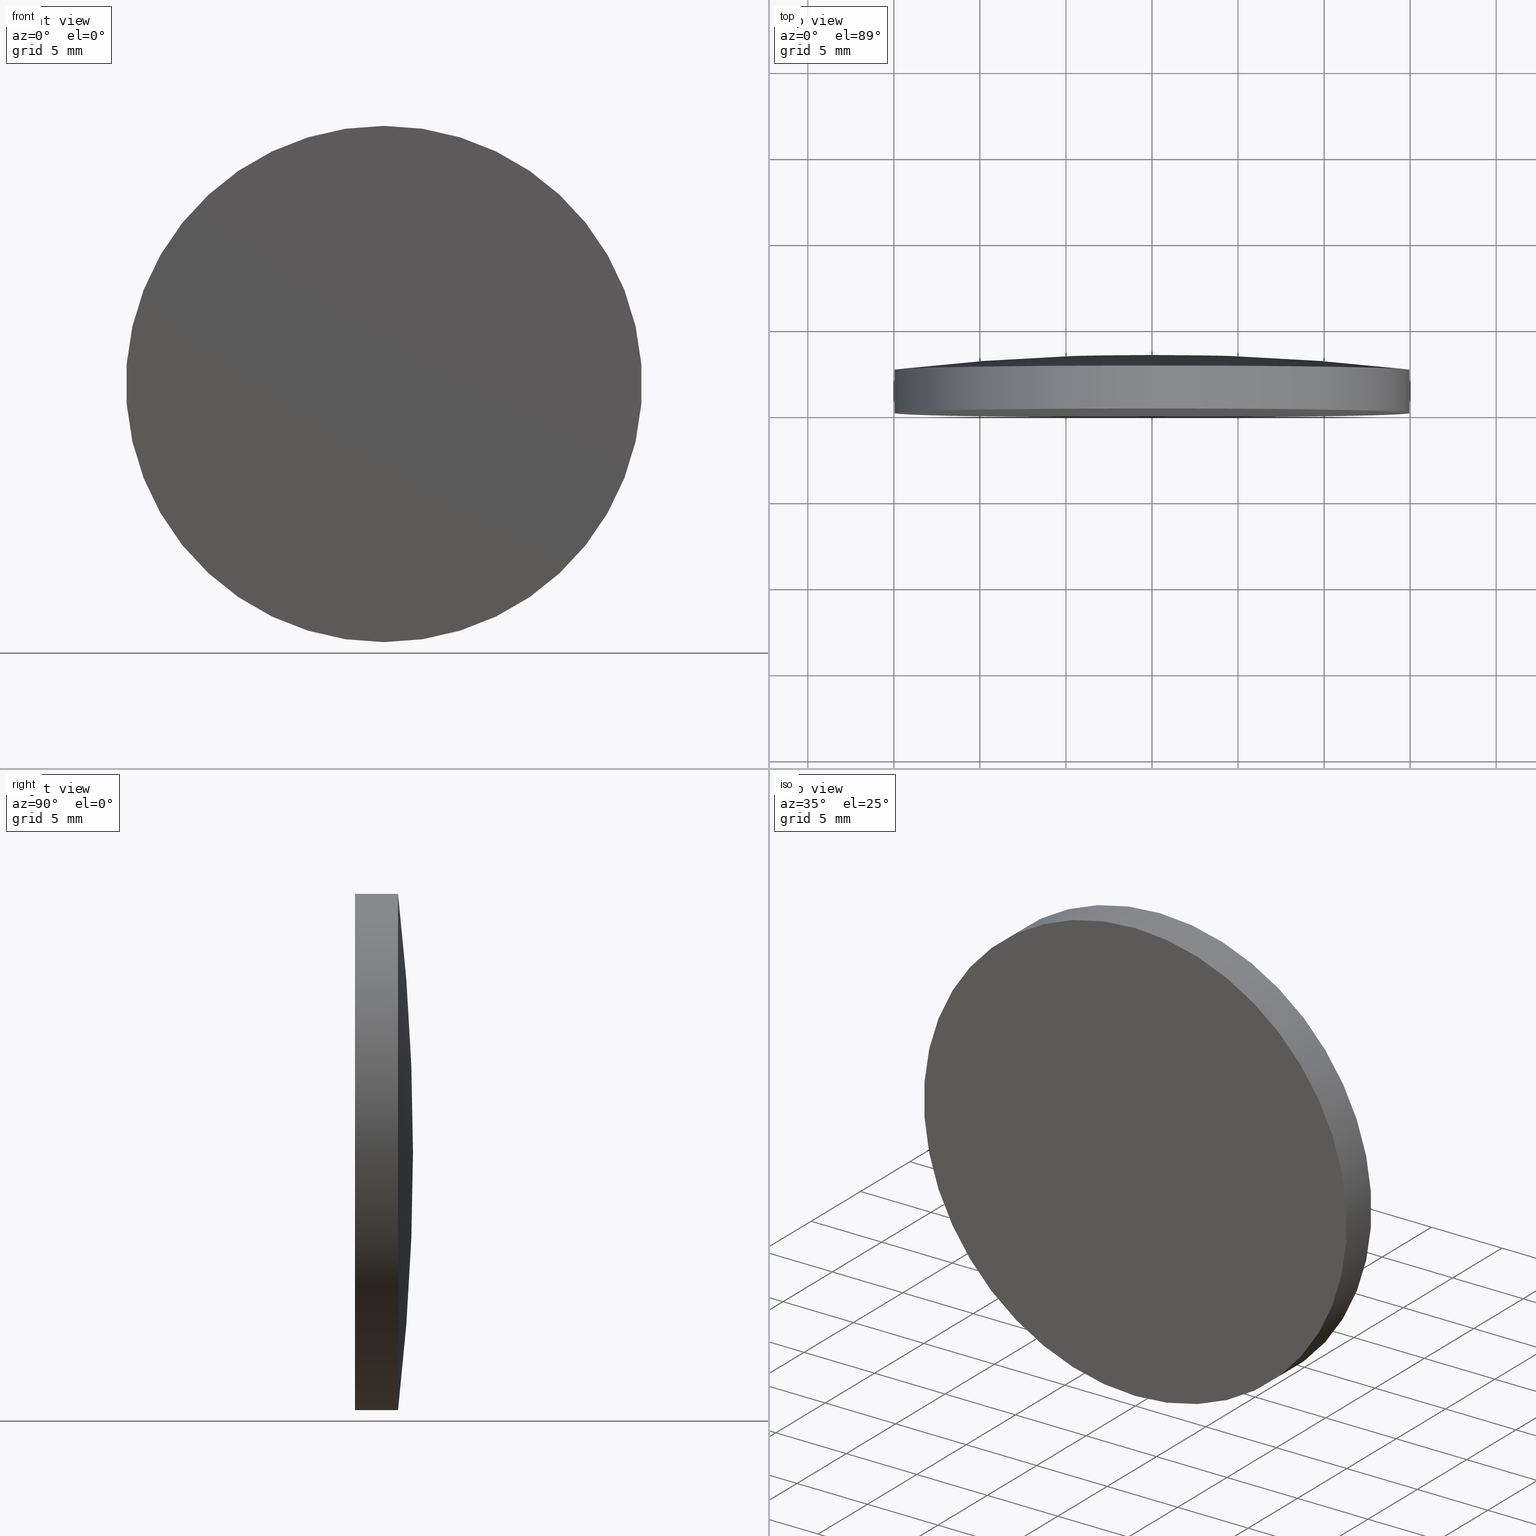
[diagram: canonical four-view strip — front | top / right | iso, engineering-drawing reading convention]
A machine part, canonical four-view strip (front | top / right | iso — engineering-drawing reading convention). The complete STEP part file that produces these views, byte-faithful:
ISO-10303-21;
HEADER;
FILE_DESCRIPTION (( 'STEP AP203' ),
    '1' );
FILE_NAME ('100602.STEP',
    '2024-05-10T02:33:17',
    ( '' ),
    ( '' ),
    'SwSTEP 2.0',
    'SolidWorks 2020',
    '' );
FILE_SCHEMA (( 'CONFIG_CONTROL_DESIGN' ));
ENDSEC;

DATA;
#1 = DATE_TIME_ROLE ( 'creation_date' ) ;
#2 = DIRECTION ( 'NONE',  ( -0.000000000000000000, 1.000000000000000000, -0.000000000000000000 ) ) ;
#3 = PRODUCT_RELATED_PRODUCT_CATEGORY ( 'detail', '', ( #152 ) ) ;
#4 = VECTOR ( 'NONE', #68, 1000.000000000000000 ) ;
#5 = DIRECTION ( 'NONE',  ( 0.000000000000000000, -1.000000000000000000, 0.000000000000000000 ) ) ;
#6 = CARTESIAN_POINT ( 'NONE',  ( 0.000000000000000000, 3.370000000000000107, 0.000000000000000000 ) ) ;
#7 = EDGE_CURVE ( 'NONE', #177, #41, #111, .T. ) ;
#8 = ORIENTED_EDGE ( 'NONE', *, *, #121, .F. ) ;
#9 = CARTESIAN_POINT ( 'NONE',  ( 1.836970198721029589E-15, 3.370000000000000107, -15.00000000000000000 ) ) ;
#10 = CIRCLE ( 'NONE', #27, 15.00000000000000000 ) ;
#11 = ORIENTED_EDGE ( 'NONE', *, *, #92, .F. ) ;
#12 = APPROVAL_DATE_TIME ( #178, #107 ) ;
#13 = PERSON_AND_ORGANIZATION ( #80, #35 ) ;
#14 = CIRCLE ( 'NONE', #91, 129.2400000000000375 ) ;
#15 = PERSON_AND_ORGANIZATION ( #80, #35 ) ;
#16 = FACE_OUTER_BOUND ( 'NONE', #84, .T. ) ;
#17 = CC_DESIGN_DATE_AND_TIME_ASSIGNMENT ( #197, #100, ( #132 ) ) ;
#18 = TOROIDAL_SURFACE ( 'NONE', #176, 0.02931019276951850328, 129.2400000000000375 ) ;
#19 = PLANE ( 'NONE',  #61 ) ;
#20 = VERTEX_POINT ( 'NONE', #24 ) ;
#21 = PRODUCT_DEFINITION ( 'δ֪', '', #23, #64 ) ;
#22 = DIRECTION ( 'NONE',  ( 0.000000000000000000, 0.000000000000000000, 1.000000000000000000 ) ) ;
#23 = PRODUCT_DEFINITION_FORMATION_WITH_SPECIFIED_SOURCE ( '�κ�', '', #152, .NOT_KNOWN. ) ;
#24 = CARTESIAN_POINT ( 'NONE',  ( 0.000000000000000000, -1.734723475976807094E-15, 15.00000000000000000 ) ) ;
#25 = PERSON_AND_ORGANIZATION ( #80, #35 ) ;
#26 = ORIENTED_EDGE ( 'NONE', *, *, #7, .F. ) ;
#27 = AXIS2_PLACEMENT_3D ( 'NONE', #51, #170, #188 ) ;
#28 = CALENDAR_DATE ( 2024, 10, 5 ) ;
#29 = APPLICATION_PROTOCOL_DEFINITION ( 'international standard', 'config_control_design', 1994, #97 ) ;
#30 = COORDINATED_UNIVERSAL_TIME_OFFSET ( 8, 0, .AHEAD. ) ;
#31 = CARTESIAN_POINT ( 'NONE',  ( 0.000000000000000000, 3.370000000000000107, 0.000000000000000000 ) ) ;
#32 = APPROVAL_PERSON_ORGANIZATION ( #40, #150, #148 ) ;
#33 = CARTESIAN_POINT ( 'NONE',  ( 0.000000000000000000, 2.499999999999998224, 0.000000000000000000 ) ) ;
#34 = ORIENTED_EDGE ( 'NONE', *, *, #179, .T. ) ;
#35 = ORGANIZATION ( 'δָ��', 'δָ��', '' ) ;
#36 = CC_DESIGN_PERSON_AND_ORGANIZATION_ASSIGNMENT ( #165, #147, ( #23 ) ) ;
#37 = DIRECTION ( 'NONE',  ( 0.000000000000000000, -0.000000000000000000, -1.000000000000000000 ) ) ;
#38 = TOROIDAL_SURFACE ( 'NONE', #162, 0.02931019276951850328, 129.2400000000000375 ) ;
#39 = COORDINATED_UNIVERSAL_TIME_OFFSET ( 8, 0, .AHEAD. ) ;
#40 = PERSON_AND_ORGANIZATION ( #80, #35 ) ;
#41 = VERTEX_POINT ( 'NONE', #195 ) ;
#42 = CC_DESIGN_PERSON_AND_ORGANIZATION_ASSIGNMENT ( #15, #89, ( #21 ) ) ;
#43 = APPROVAL_DATE_TIME ( #72, #150 ) ;
#44 = DIRECTION ( 'NONE',  ( -0.000000000000000000, 1.000000000000000000, -0.000000000000000000 ) ) ;
#45 = ADVANCED_BREP_SHAPE_REPRESENTATION ( '100602', ( #133, #168 ), #138 ) ;
#46 = CC_DESIGN_APPROVAL ( #183, ( #23 ) ) ;
#47 = DIRECTION ( 'NONE',  ( -0.000000000000000000, 1.000000000000000000, -0.000000000000000000 ) ) ;
#48 = EDGE_CURVE ( 'NONE', #20, #173, #10, .T. ) ;
#49 = EDGE_LOOP ( 'NONE', ( #118, #34, #166 ) ) ;
#50 = DIRECTION ( 'NONE',  ( 1.000000000000000000, 0.000000000000000000, 1.224646799147353207E-16 ) ) ;
#51 = CARTESIAN_POINT ( 'NONE',  ( 0.000000000000000000, -1.734723475976807094E-15, 0.000000000000000000 ) ) ;
#52 = APPROVAL_ROLE ( '' ) ;
#53 = LINE ( 'NONE', #9, #4 ) ;
#54 = ADVANCED_FACE ( 'NONE', ( #16 ), #106, .T. ) ;
#55 = ORIENTED_EDGE ( 'NONE', *, *, #92, .T. ) ;
#56 = APPROVAL_STATUS ( 'not_yet_approved' ) ;
#57 = APPROVAL_PERSON_ORGANIZATION ( #58, #183, #169 ) ;
#58 = PERSON_AND_ORGANIZATION ( #80, #35 ) ;
#59 = CARTESIAN_POINT ( 'NONE',  ( 0.000000000000000000, 3.370000000000000107, 0.000000000000000000 ) ) ;
#60 = DIRECTION ( 'NONE',  ( -0.000000000000000000, 1.000000000000000000, -0.000000000000000000 ) ) ;
#61 = AXIS2_PLACEMENT_3D ( 'NONE', #124, #5, #37 ) ;
#62 = CC_DESIGN_SECURITY_CLASSIFICATION ( #132, ( #23 ) ) ;
#63 = CARTESIAN_POINT ( 'NONE',  ( 1.836970198721026039E-15, 2.500000000000000444, -14.99999999999996980 ) ) ;
#64 = DESIGN_CONTEXT ( 'detailed design', #94, 'design' ) ;
#65 = ORIENTED_EDGE ( 'NONE', *, *, #179, .F. ) ;
#66 = EDGE_CURVE ( 'NONE', #20, #41, #76, .T. ) ;
#67 = CALENDAR_DATE ( 2024, 10, 5 ) ;
#68 = DIRECTION ( 'NONE',  ( -0.000000000000000000, 1.000000000000000000, -0.000000000000000000 ) ) ;
#69 = CC_DESIGN_PERSON_AND_ORGANIZATION_ASSIGNMENT ( #86, #130, ( #132 ) ) ;
#70 = VERTEX_POINT ( 'NONE', #59 ) ;
#71 = COORDINATED_UNIVERSAL_TIME_OFFSET ( 8, 0, .AHEAD. ) ;
#72 = DATE_AND_TIME ( #187, #201 ) ;
#73 = PRODUCT_DEFINITION_SHAPE ( 'NONE', 'NONE',  #21 ) ;
#74 = PERSON_AND_ORGANIZATION_ROLE ( 'design_owner' ) ;
#75 = AXIS2_PLACEMENT_3D ( 'NONE', #31, #90, #155 ) ;
#76 = LINE ( 'NONE', #136, #182 ) ;
#77 = CC_DESIGN_PERSON_AND_ORGANIZATION_ASSIGNMENT ( #13, #74, ( #152 ) ) ;
#78 = CIRCLE ( 'NONE', #102, 129.2400000000000375 ) ;
#79 = FACE_OUTER_BOUND ( 'NONE', #128, .T. ) ;
#80 = PERSON ( 'δָ��', 'δָ��', 'δָ��', ('δָ��'), ('δָ��'), ('δָ��') ) ;
#81 = CARTESIAN_POINT ( 'NONE',  ( 1.836970198721029589E-15, -1.734723475976807094E-15, -15.00000000000000000 ) ) ;
#82 = CC_DESIGN_APPROVAL ( #150, ( #21 ) ) ;
#83 = CALENDAR_DATE ( 2024, 10, 5 ) ;
#84 = EDGE_LOOP ( 'NONE', ( #88, #55, #126, #26 ) ) ;
#85 = FACE_OUTER_BOUND ( 'NONE', #49, .T. ) ;
#86 = PERSON_AND_ORGANIZATION ( #80, #35 ) ;
#87 = APPROVAL_STATUS ( 'not_yet_approved' ) ;
#88 = ORIENTED_EDGE ( 'NONE', *, *, #189, .F. ) ;
#89 = PERSON_AND_ORGANIZATION_ROLE ( 'creator' ) ;
#90 = DIRECTION ( 'NONE',  ( -0.000000000000000000, 1.000000000000000000, -0.000000000000000000 ) ) ;
#91 = AXIS2_PLACEMENT_3D ( 'NONE', #127, #158, #143 ) ;
#92 = EDGE_CURVE ( 'NONE', #173, #20, #191, .T. ) ;
#93 = CARTESIAN_POINT ( 'NONE',  ( 0.000000000000000000, -125.8699966763873448, 0.000000000000000000 ) ) ;
#94 = APPLICATION_CONTEXT ( 'configuration controlled 3d designs of mechanical parts and assemblies' ) ;
#95 = AXIS2_PLACEMENT_3D ( 'NONE', #98, #160, #145 ) ;
#96 = DIRECTION ( 'NONE',  ( -0.000000000000000000, 1.000000000000000000, -0.000000000000000000 ) ) ;
#97 = APPLICATION_CONTEXT ( 'configuration controlled 3d designs of mechanical parts and assemblies' ) ;
#98 = CARTESIAN_POINT ( 'NONE',  ( 0.000000000000000000, 2.499999999999998224, 0.000000000000000000 ) ) ;
#99 = CIRCLE ( 'NONE', #154, 15.00000000000000000 ) ;
#100 = DATE_TIME_ROLE ( 'classification_date' ) ;
#101 = EDGE_LOOP ( 'NONE', ( #113, #129, #8, #149 ) ) ;
#102 = AXIS2_PLACEMENT_3D ( 'NONE', #193, #50, #163 ) ;
#103 = DIRECTION ( 'NONE',  ( 0.000000000000000000, 0.000000000000000000, 1.000000000000000000 ) ) ;
#104 = CALENDAR_DATE ( 2024, 10, 5 ) ;
#105 = ADVANCED_FACE ( 'NONE', ( #109 ), #38, .T. ) ;
#106 = CYLINDRICAL_SURFACE ( 'NONE', #75, 15.00000000000000000 ) ;
#107 = APPROVAL ( #56, 'δָ��' ) ;
#108 = LOCAL_TIME ( 10, 33, 17.00000000000000000, #134 ) ;
#109 = FACE_OUTER_BOUND ( 'NONE', #185, .T. ) ;
#110 = FACE_OUTER_BOUND ( 'NONE', #101, .T. ) ;
#111 = CIRCLE ( 'NONE', #95, 15.00000000000000000 ) ;
#112 = CC_DESIGN_DATE_AND_TIME_ASSIGNMENT ( #153, #1, ( #21 ) ) ;
#113 = ORIENTED_EDGE ( 'NONE', *, *, #48, .T. ) ;
#114 = COORDINATED_UNIVERSAL_TIME_OFFSET ( 8, 0, .AHEAD. ) ;
#115 = DIRECTION ( 'NONE',  ( 0.000000000000000000, 0.000000000000000000, 1.000000000000000000 ) ) ;
#116 = APPROVAL_DATE_TIME ( #200, #183 ) ;
#117 =( NAMED_UNIT ( * ) PLANE_ANGLE_UNIT ( ) SI_UNIT ( $, .RADIAN. ) );
#118 = ORIENTED_EDGE ( 'NONE', *, *, #121, .T. ) ;
#119 = APPROVAL_PERSON_ORGANIZATION ( #161, #107, #52 ) ;
#120 = APPLICATION_PROTOCOL_DEFINITION ( 'international standard', 'config_control_design', 1994, #94 ) ;
#121 = EDGE_CURVE ( 'NONE', #41, #177, #99, .T. ) ;
#122 = APPROVAL_STATUS ( 'not_yet_approved' ) ;
#123 = CARTESIAN_POINT ( 'NONE',  ( 0.000000000000000000, -1.734723475976807094E-15, 0.000000000000000000 ) ) ;
#124 = CARTESIAN_POINT ( 'NONE',  ( 0.000000000000000000, -9.184850993605147944E-16, 0.000000000000000000 ) ) ;
#125 = AXIS2_PLACEMENT_3D ( 'NONE', #123, #44, #190 ) ;
#126 = ORIENTED_EDGE ( 'NONE', *, *, #66, .T. ) ;
#127 = CARTESIAN_POINT ( 'NONE',  ( 0.000000000000000000, -125.8699966763873448, 0.02931019276951850328 ) ) ;
#128 = EDGE_LOOP ( 'NONE', ( #157, #11 ) ) ;
#129 = ORIENTED_EDGE ( 'NONE', *, *, #189, .T. ) ;
#130 = PERSON_AND_ORGANIZATION_ROLE ( 'classification_officer' ) ;
#131 = ADVANCED_FACE ( 'NONE', ( #79 ), #19, .T. ) ;
#132 = SECURITY_CLASSIFICATION ( '', '', #181 ) ;
#133 = MANIFOLD_SOLID_BREP ( '��ת1', #137 ) ;
#134 = COORDINATED_UNIVERSAL_TIME_OFFSET ( 8, 0, .AHEAD. ) ;
#135 = DIRECTION ( 'NONE',  ( 1.000000000000000000, 0.000000000000000000, 0.000000000000000000 ) ) ;
#136 = CARTESIAN_POINT ( 'NONE',  ( 0.000000000000000000, 3.370000000000000107, 15.00000000000000000 ) ) ;
#137 = CLOSED_SHELL ( 'NONE', ( #171, #196, #105, #131, #54 ) ) ;
#138 =( GEOMETRIC_REPRESENTATION_CONTEXT ( 3 ) GLOBAL_UNCERTAINTY_ASSIGNED_CONTEXT ( ( #174 ) ) GLOBAL_UNIT_ASSIGNED_CONTEXT ( ( #180, #117, #184 ) ) REPRESENTATION_CONTEXT ( 'NONE', 'WORKASPACE' ) );
#139 = DIRECTION ( 'NONE',  ( 0.000000000000000000, 0.000000000000000000, 1.000000000000000000 ) ) ;
#140 = EDGE_CURVE ( 'NONE', #41, #70, #14, .T. ) ;
#141 = CC_DESIGN_PERSON_AND_ORGANIZATION_ASSIGNMENT ( #25, #167, ( #23 ) ) ;
#142 = CC_DESIGN_APPROVAL ( #107, ( #132 ) ) ;
#143 = DIRECTION ( 'NONE',  ( 0.000000000000000000, 0.000000000000000000, 1.000000000000000000 ) ) ;
#144 = LOCAL_TIME ( 10, 33, 17.00000000000000000, #71 ) ;
#145 = DIRECTION ( 'NONE',  ( 0.000000000000000000, 0.000000000000000000, 1.000000000000000000 ) ) ;
#146 = DIRECTION ( 'NONE',  ( -0.000000000000000000, 1.000000000000000000, -0.000000000000000000 ) ) ;
#147 = PERSON_AND_ORGANIZATION_ROLE ( 'creator' ) ;
#148 = APPROVAL_ROLE ( '' ) ;
#149 = ORIENTED_EDGE ( 'NONE', *, *, #66, .F. ) ;
#150 = APPROVAL ( #87, 'δָ��' ) ;
#151 = MECHANICAL_CONTEXT ( 'NONE', #97, 'mechanical' ) ;
#152 = PRODUCT ( '100602', '100602', '', ( #151 ) ) ;
#153 = DATE_AND_TIME ( #104, #108 ) ;
#154 = AXIS2_PLACEMENT_3D ( 'NONE', #33, #47, #156 ) ;
#155 = DIRECTION ( 'NONE',  ( 0.000000000000000000, 0.000000000000000000, 1.000000000000000000 ) ) ;
#156 = DIRECTION ( 'NONE',  ( 0.000000000000000000, 0.000000000000000000, 1.000000000000000000 ) ) ;
#157 = ORIENTED_EDGE ( 'NONE', *, *, #48, .F. ) ;
#158 = DIRECTION ( 'NONE',  ( -1.000000000000000000, 0.000000000000000000, 0.000000000000000000 ) ) ;
#159 = LOCAL_TIME ( 10, 33, 17.00000000000000000, #39 ) ;
#160 = DIRECTION ( 'NONE',  ( -0.000000000000000000, 1.000000000000000000, -0.000000000000000000 ) ) ;
#161 = PERSON_AND_ORGANIZATION ( #80, #35 ) ;
#162 = AXIS2_PLACEMENT_3D ( 'NONE', #93, #60, #139 ) ;
#163 = DIRECTION ( 'NONE',  ( 1.224646799147353454E-16, 0.000000000000000000, -1.000000000000000000 ) ) ;
#164 = SHAPE_DEFINITION_REPRESENTATION ( #73, #45 ) ;
#165 = PERSON_AND_ORGANIZATION ( #80, #35 ) ;
#166 = ORIENTED_EDGE ( 'NONE', *, *, #140, .F. ) ;
#167 = PERSON_AND_ORGANIZATION_ROLE ( 'design_supplier' ) ;
#168 = AXIS2_PLACEMENT_3D ( 'NONE', #186, #103, #135 ) ;
#169 = APPROVAL_ROLE ( '' ) ;
#170 = DIRECTION ( 'NONE',  ( -0.000000000000000000, 1.000000000000000000, -0.000000000000000000 ) ) ;
#171 = ADVANCED_FACE ( 'NONE', ( #110 ), #175, .T. ) ;
#172 = LOCAL_TIME ( 10, 33, 17.00000000000000000, #114 ) ;
#173 = VERTEX_POINT ( 'NONE', #81 ) ;
#174 = UNCERTAINTY_MEASURE_WITH_UNIT (LENGTH_MEASURE( 1.000000000000000082E-05 ), #180, 'distance_accuracy_value', 'NONE');
#175 = CYLINDRICAL_SURFACE ( 'NONE', #194, 15.00000000000000000 ) ;
#176 = AXIS2_PLACEMENT_3D ( 'NONE', #198, #146, #115 ) ;
#177 = VERTEX_POINT ( 'NONE', #63 ) ;
#178 = DATE_AND_TIME ( #28, #144 ) ;
#179 = EDGE_CURVE ( 'NONE', #177, #70, #78, .T. ) ;
#180 =( LENGTH_UNIT ( ) NAMED_UNIT ( * ) SI_UNIT ( .MILLI., .METRE. ) );
#181 = SECURITY_CLASSIFICATION_LEVEL ( 'unclassified' ) ;
#182 = VECTOR ( 'NONE', #2, 1000.000000000000000 ) ;
#183 = APPROVAL ( #122, 'δָ��' ) ;
#184 =( NAMED_UNIT ( * ) SI_UNIT ( $, .STERADIAN. ) SOLID_ANGLE_UNIT ( ) );
#185 = EDGE_LOOP ( 'NONE', ( #65, #192, #199 ) ) ;
#186 = CARTESIAN_POINT ( 'NONE',  ( 0.000000000000000000, 0.000000000000000000, 0.000000000000000000 ) ) ;
#187 = CALENDAR_DATE ( 2024, 10, 5 ) ;
#188 = DIRECTION ( 'NONE',  ( 0.000000000000000000, 0.000000000000000000, 1.000000000000000000 ) ) ;
#189 = EDGE_CURVE ( 'NONE', #173, #177, #53, .T. ) ;
#190 = DIRECTION ( 'NONE',  ( 0.000000000000000000, 0.000000000000000000, 1.000000000000000000 ) ) ;
#191 = CIRCLE ( 'NONE', #125, 15.00000000000000000 ) ;
#192 = ORIENTED_EDGE ( 'NONE', *, *, #7, .T. ) ;
#193 = CARTESIAN_POINT ( 'NONE',  ( 3.589463375758273298E-18, -125.8699966763873448, -0.02931019276951850328 ) ) ;
#194 = AXIS2_PLACEMENT_3D ( 'NONE', #6, #96, #22 ) ;
#195 = CARTESIAN_POINT ( 'NONE',  ( 0.000000000000000000, 2.500000000000000444, 14.99999999999996980 ) ) ;
#196 = ADVANCED_FACE ( 'NONE', ( #85 ), #18, .T. ) ;
#197 = DATE_AND_TIME ( #83, #159 ) ;
#198 = CARTESIAN_POINT ( 'NONE',  ( 0.000000000000000000, -125.8699966763873448, 0.000000000000000000 ) ) ;
#199 = ORIENTED_EDGE ( 'NONE', *, *, #140, .T. ) ;
#200 = DATE_AND_TIME ( #67, #172 ) ;
#201 = LOCAL_TIME ( 10, 33, 17.00000000000000000, #30 ) ;
ENDSEC;
END-ISO-10303-21;
